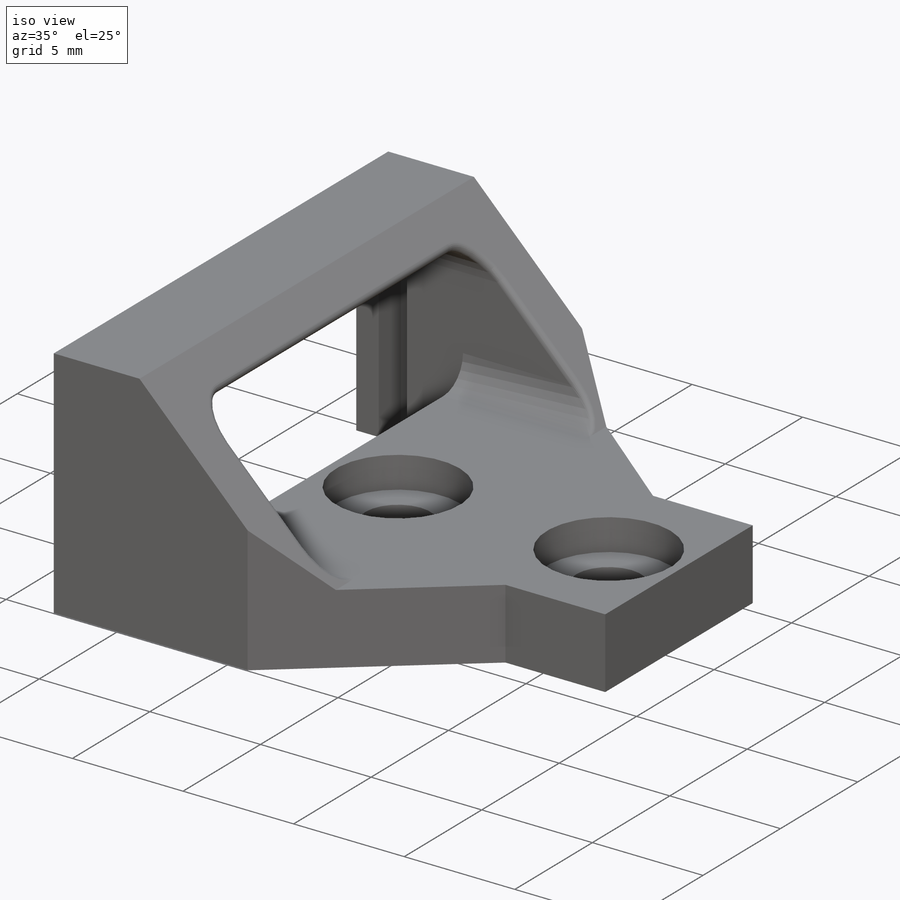
[diagram: iso view]
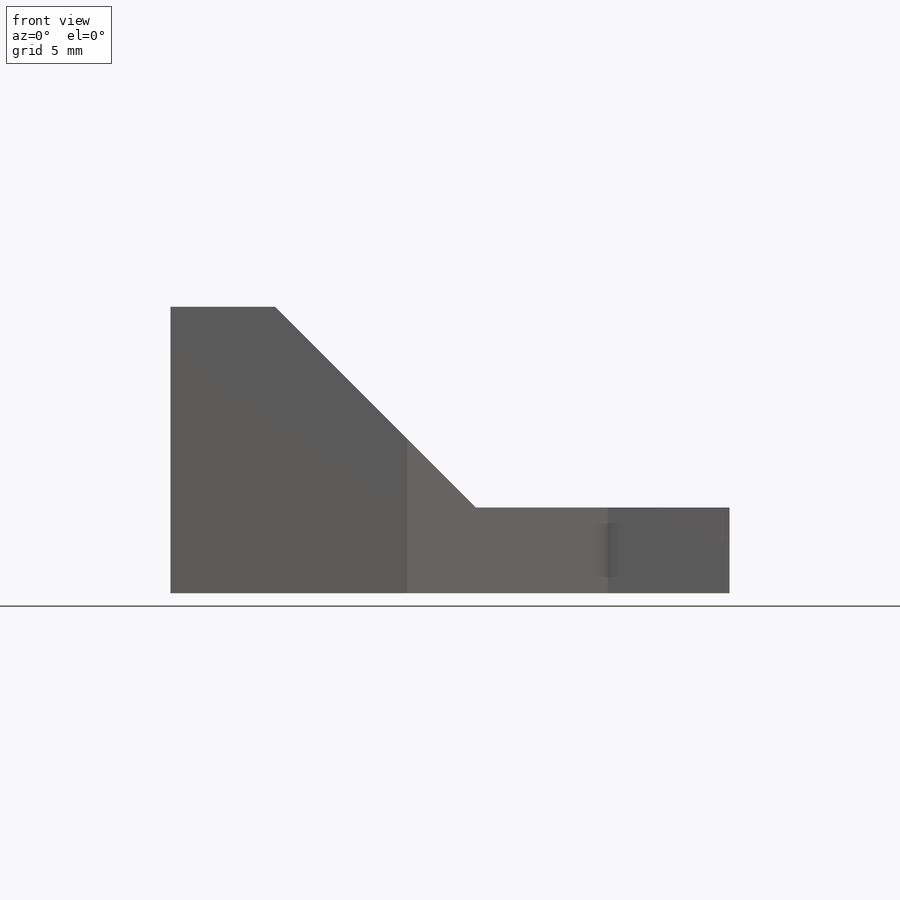
[diagram: front view]
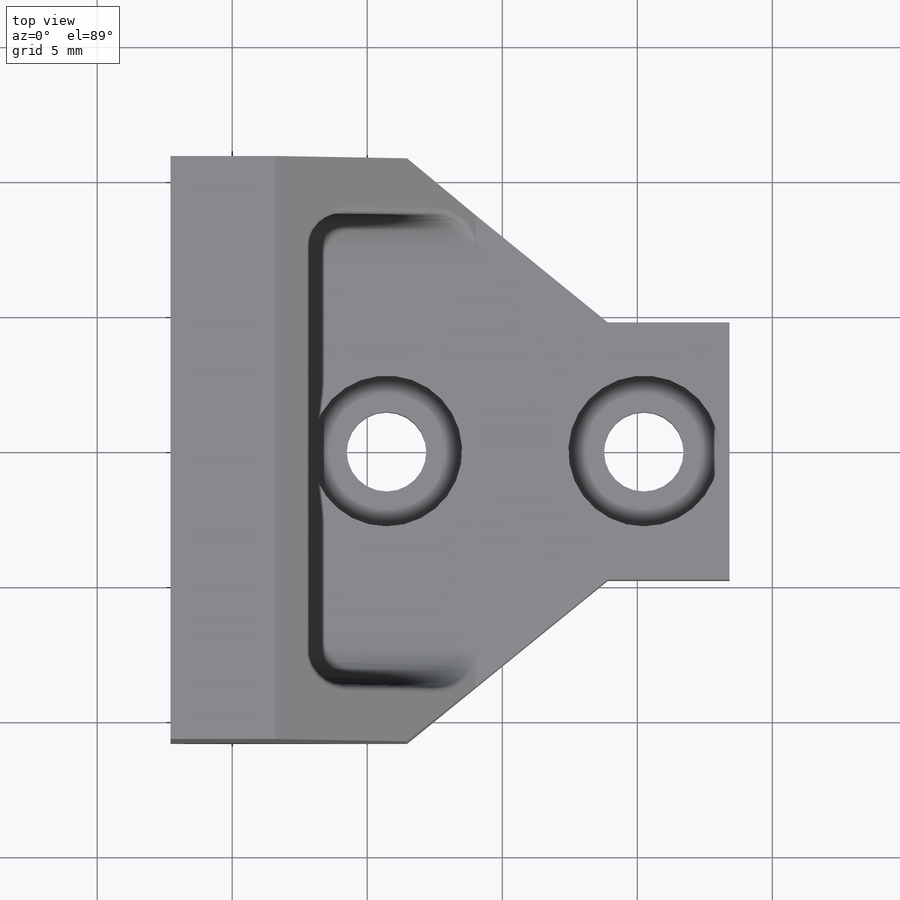
[diagram: top view]
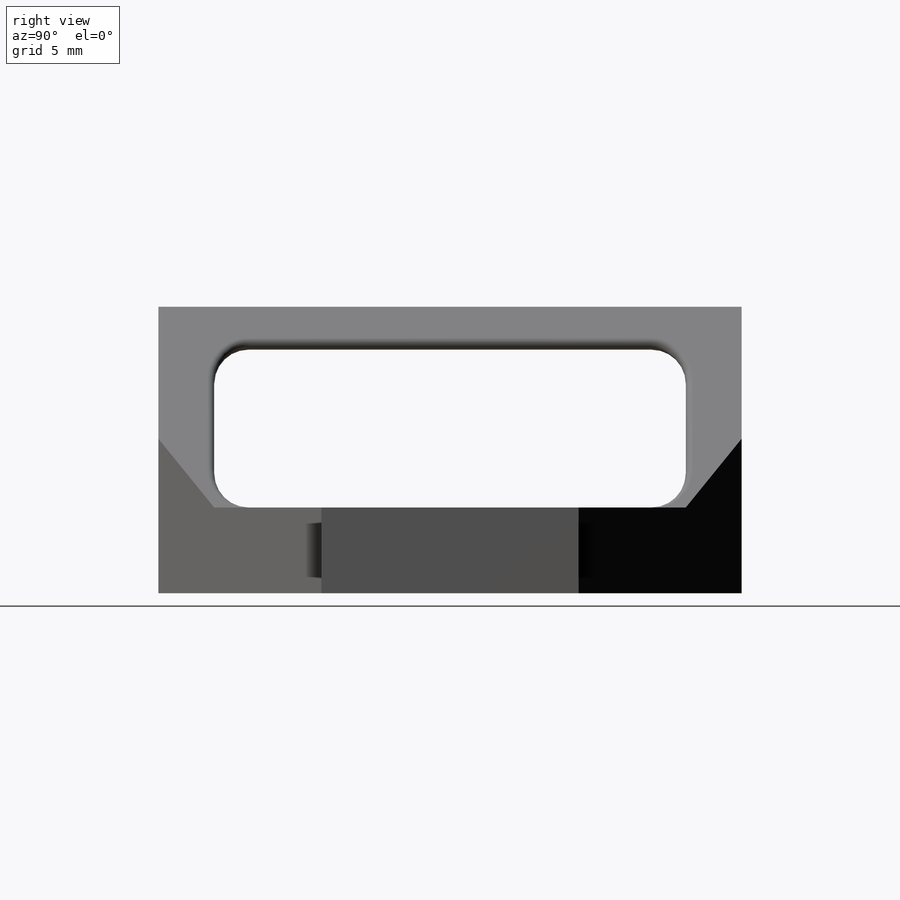
[diagram: right view]
SOLIDWORKS PART (.sldprt)
format: sldprt  version: not decoded by parser v0  size: 357,376 bytes
history: native  units: mm
features: sketch x9, extrude x4, cut_extrude x3, mirror x2, fillet x2, material x1, hole x1 (+12 scaffold rows collapsed)
feature tree (34):
  scaffold x12  (default folders/planes/origin — collapsed)
  material  "Material <not specified>"
  sketch  "Sketch1"  dims[c1.D1=1.016mm c1.D2=20.32mm c1.D3=~15.281297mm c1.D4=~15.281297mm c2.D3=1.27mm c2.D4=1.5875mm c2.D5=17.4625mm c2.D6=1.5875mm]
  extrude  "Boss-Extrude1"  Depth=9.017mm
  sketch  "Sketch2"  dims[c1.D1=2.9464mm c1.D3=5.588mm c1.D2=9.525mm c2.D3=12.7mm c2.D4=3.175mm c2.D5=4.7625mm c2.D6=2.54mm c3.D3=15.875mm c3.D5=3.175mm]
  extrude  "Boss-Extrude2"  Depth=3.175mm
  mirror  "Mirror2"
  sketch  "Sketch9"
  extrude  "Boss-Extrude6"  Depth=1.5875mm
  sketch  "Sketch7"
  extrude  "Boss-Extrude10"  [1 undecoded]
  sketch  "Sketch11"  dims[D1=0.0mm]
  cut_extrude  "Cut-Extrude3"  [1 undecoded]
  sketch  "Sketch12"  dims[D1=9.525mm D2=4.7625mm]
  cut_extrude  "Cut-Extrude4"  [1 undecoded]
  mirror  "Mirror8"
  hole  "CBORE for #4 Button Head Cap Screw1"  Diameter=2.9464mm Depth=3.175025mm
  sketch  "Sketch14"  dims[D1=3.175mm D2=6.35mm]
  sketch  "Sketch13"  dims[hole-wizard template sketch: 41 standard entries collapsed; hole parameters kept: c12.Thru Hole Dia.=2.9464mm c12.Thru Hole Depth=~3.175025mm c12.C'Bore Dia.=5.588mm c12.C'Bore Depth=1.4224mm]
  fillet  "Fillet3"  Radius=1.27mm
  sketch  "Sketch15"  dims[D1=21.59mm]
  cut_extrude  "Cut-Extrude5"  [1 undecoded]
  fillet  "Fillet4"  Radius=0.254mm
decode coverage: 13 of 21 modeling features carry decoded parameters
note: ~ marks probable driven/reference dimensions
note: 4 parameter values undecoded
summary: no parameter record found for 4 features
note: suppression state not decoded; provenance and decode notes live in map.json
